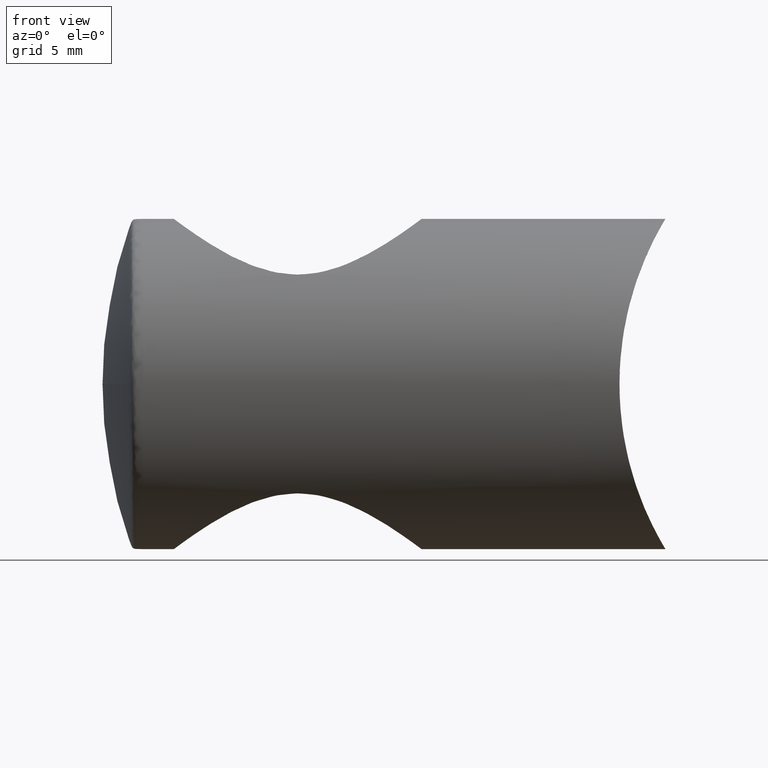
[diagram: clean part render]
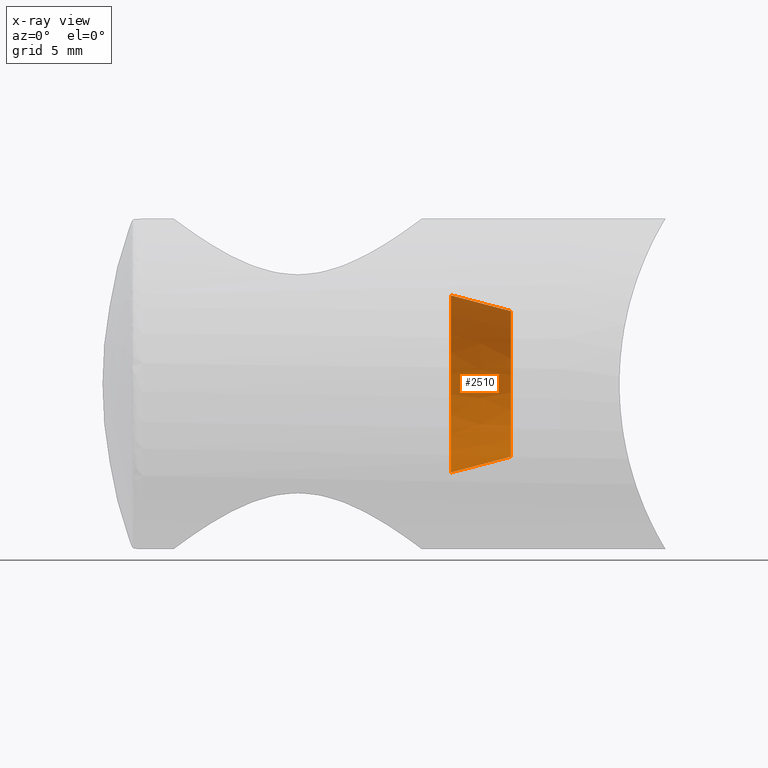
[diagram: x-ray — body ghosted, one internal face saturated and labeled with its STEP entity id]
A machine part, front view, then the same camera in x-ray: the body is ghosted and one INTERNAL B-rep face — a face not visible from any outside direction — is saturated and labeled: STEP entity #2510.
In plain terms, the highlighted conical surface has half-angle 14.708 deg.
Its self-contained STEP definition (entity closure, byte-faithful):
#82 = CARTESIAN_POINT ( 'NONE',  ( -13.58848920863309600, 0.0000000000000000000, 0.0000000000000000000 ) ) ;
#489 = EDGE_CURVE ( 'NONE', #4499, #3372, #3189, .T. ) ;
#707 = ORIENTED_EDGE ( 'NONE', *, *, #489, .T. ) ;
#971 = CARTESIAN_POINT ( 'NONE',  ( -17.58848920863309600, 0.0000000000000000000, -5.899999999999997700 ) ) ;
#1376 = DIRECTION ( 'NONE',  ( 1.000000000000000000, -0.0000000000000000000, -0.0000000000000000000 ) ) ;
#1475 = DIRECTION ( 'NONE',  ( 0.0000000000000000000, 0.0000000000000000000, 1.000000000000000000 ) ) ;
#1640 = ORIENTED_EDGE ( 'NONE', *, *, #5343, .T. ) ;
#1799 = VECTOR ( 'NONE', #3803, 1000.000000000000100 ) ;
#1943 = LINE ( 'NONE', #3534, #3165 ) ;
#1978 = CARTESIAN_POINT ( 'NONE',  ( -17.58848920863309600, 7.225416114969382200E-016, 5.899999999999997700 ) ) ;
#2335 = EDGE_CURVE ( 'NONE', #3314, #3372, #1943, .T. ) ;
#2432 = VERTEX_POINT ( 'NONE', #2712 ) ;
#2471 = FACE_OUTER_BOUND ( 'NONE', #3586, .T. ) ;
#2510 = ADVANCED_FACE ( 'NONE', ( #2471 ), #3297, .T. ) ;
#2512 = CARTESIAN_POINT ( 'NONE',  ( -17.58848920863309600, 0.0000000000000000000, 0.0000000000000000000 ) ) ;
#2712 = CARTESIAN_POINT ( 'NONE',  ( -13.58848920863309600, 6.582476545417020100E-016, -4.849999999999997900 ) ) ;
#2887 = CARTESIAN_POINT ( 'NONE',  ( -13.58848920863309600, 0.0000000000000000000, 4.849999999999997900 ) ) ;
#3154 = LINE ( 'NONE', #4207, #1799 ) ;
#3165 = VECTOR ( 'NONE', #4793, 1000.000000000000100 ) ;
#3189 = CIRCLE ( 'NONE', #4595, 5.899999999999997700 ) ;
#3297 = CONICAL_SURFACE ( 'NONE', #4810, 4.849999999999997900, 0.2567083304333858100 ) ;
#3299 = ORIENTED_EDGE ( 'NONE', *, *, #2335, .F. ) ;
#3314 = VERTEX_POINT ( 'NONE', #2887 ) ;
#3372 = VERTEX_POINT ( 'NONE', #1978 ) ;
#3390 = ORIENTED_EDGE ( 'NONE', *, *, #5069, .F. ) ;
#3534 = CARTESIAN_POINT ( 'NONE',  ( -13.58848920863309600, 0.0000000000000000000, 4.849999999999997900 ) ) ;
#3557 = DIRECTION ( 'NONE',  ( 0.0000000000000000000, 0.0000000000000000000, -1.000000000000000000 ) ) ;
#3586 = EDGE_LOOP ( 'NONE', ( #3390, #1640, #707, #3299 ) ) ;
#3803 = DIRECTION ( 'NONE',  ( -0.9672309653794339800, 3.109355302693838800E-017, -0.2538981284121015800 ) ) ;
#4207 = CARTESIAN_POINT ( 'NONE',  ( -13.58848920863309600, 5.939536975864660000E-016, -4.849999999999997900 ) ) ;
#4342 = AXIS2_PLACEMENT_3D ( 'NONE', #82, #1376, #3557 ) ;
#4437 = CARTESIAN_POINT ( 'NONE',  ( -13.58848920863309600, 0.0000000000000000000, 0.0000000000000000000 ) ) ;
#4499 = VERTEX_POINT ( 'NONE', #971 ) ;
#4595 = AXIS2_PLACEMENT_3D ( 'NONE', #2512, #5483, #4663 ) ;
#4605 = CIRCLE ( 'NONE', #4342, 4.849999999999997900 ) ;
#4663 = DIRECTION ( 'NONE',  ( 0.0000000000000000000, 0.0000000000000000000, -1.000000000000000000 ) ) ;
#4793 = DIRECTION ( 'NONE',  ( -0.9672309653794339800, 0.0000000000000000000, 0.2538981284121015800 ) ) ;
#4810 = AXIS2_PLACEMENT_3D ( 'NONE', #4437, #4816, #1475 ) ;
#4816 = DIRECTION ( 'NONE',  ( -1.000000000000000000, 0.0000000000000000000, 0.0000000000000000000 ) ) ;
#5069 = EDGE_CURVE ( 'NONE', #2432, #3314, #4605, .T. ) ;
#5343 = EDGE_CURVE ( 'NONE', #2432, #4499, #3154, .T. ) ;
#5483 = DIRECTION ( 'NONE',  ( 1.000000000000000000, -0.0000000000000000000, -0.0000000000000000000 ) ) ;